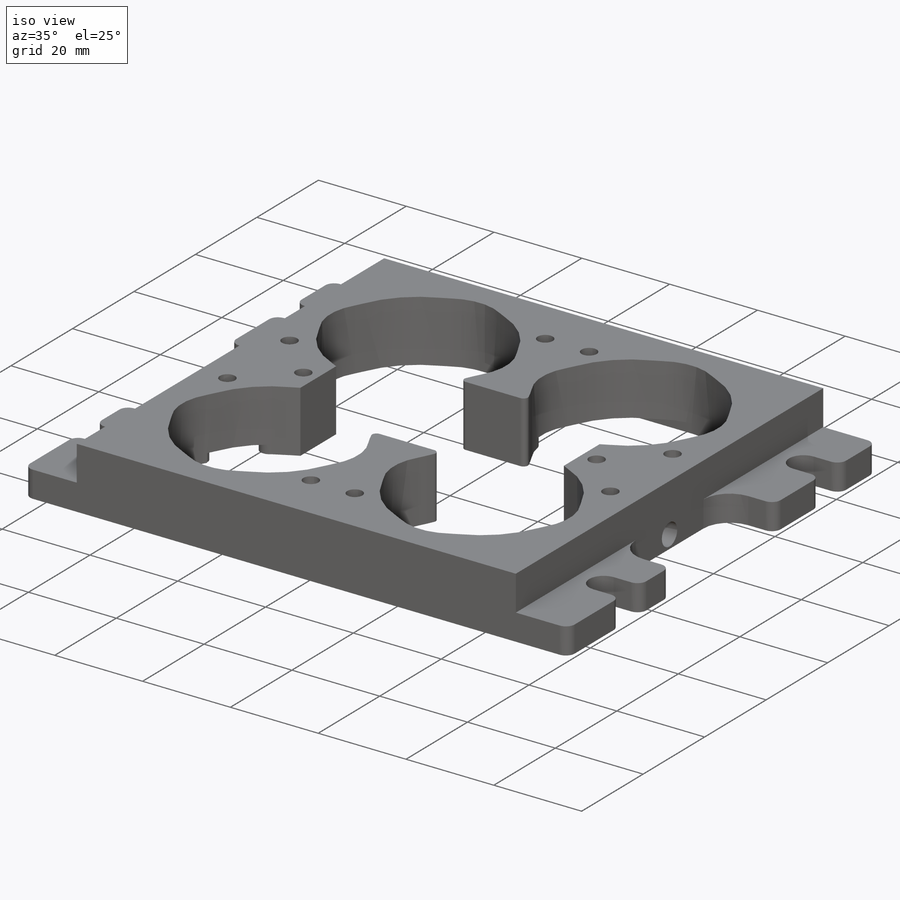
[diagram: iso view]
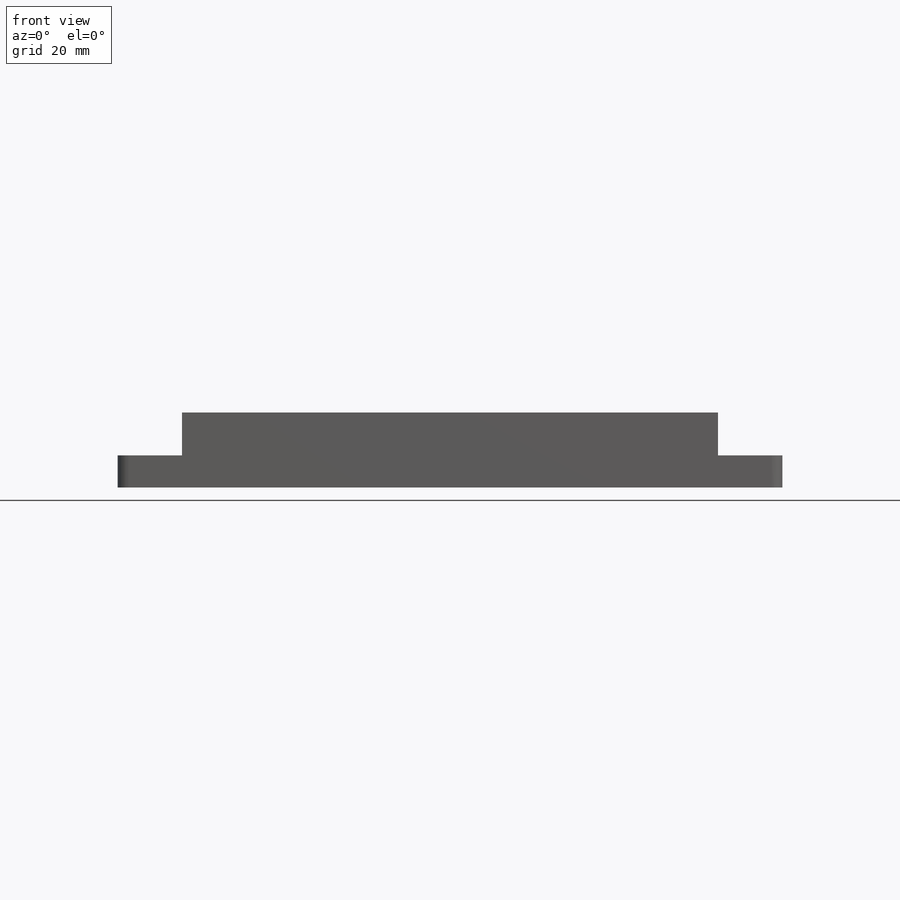
[diagram: front view]
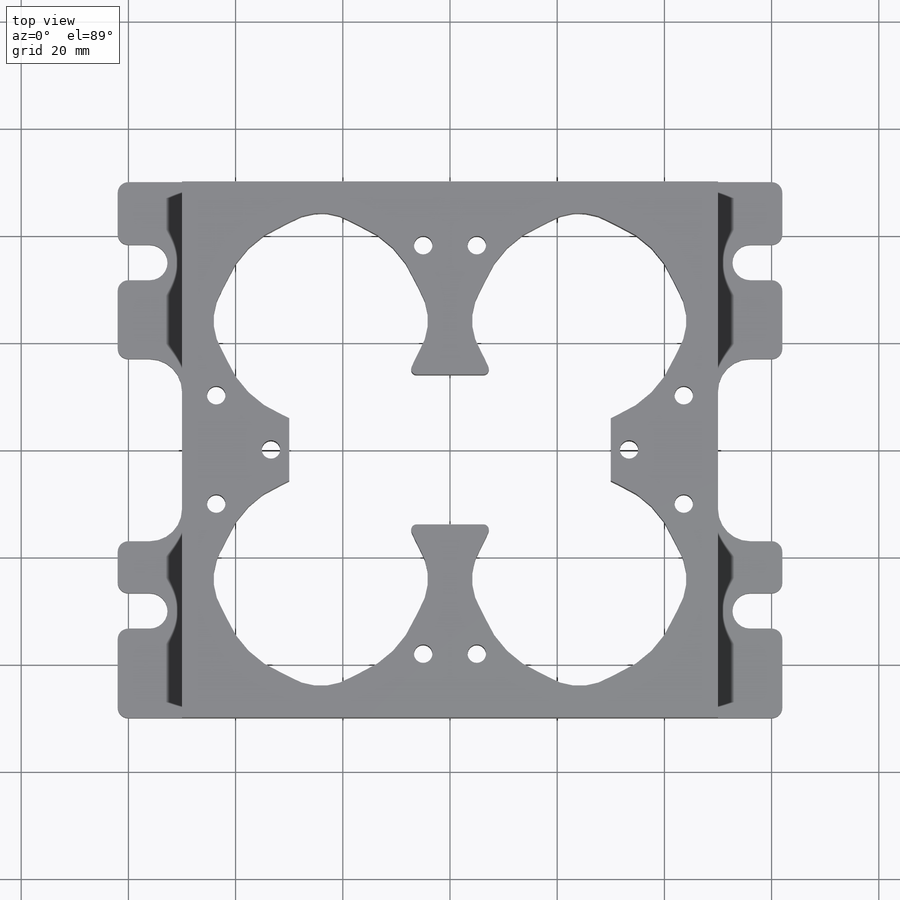
[diagram: top view]
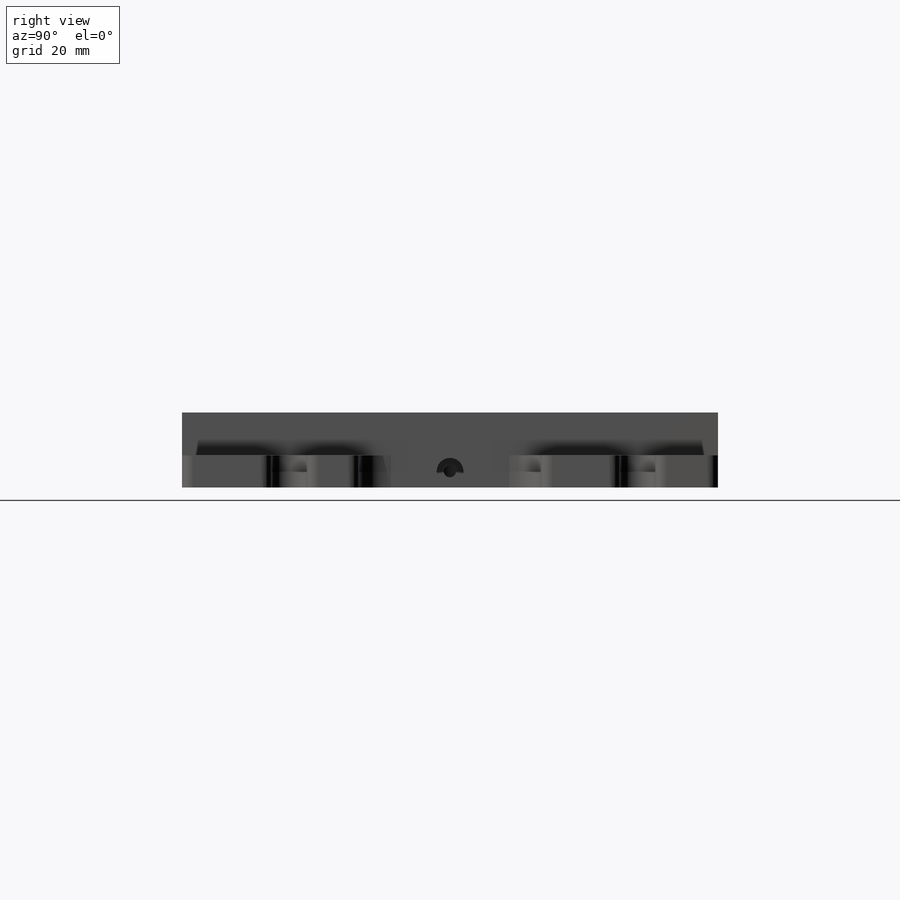
[diagram: right view]
SOLIDWORKS PART (.sldprt)
format: sldprt  version: not decoded by parser v0  size: 752,128 bytes
history: native  units: mm
features: sketch x14, thread x11, mirror x8, cut_extrude x6, fillet x4, hole x3, extrude x2, plane x2, material x1 (+16 scaffold rows collapsed)
feature tree (67):
  scaffold x16  (default folders/planes/origin — collapsed)
  material  "6061-T6 Al"
  sketch  "Sketch1"  dims[D1=100.0mm D2=100.0mm]
  extrude  "Extrude1"  Depth=14mm
  plane  "Plane1"
  sketch  "Sketch2"  dims[c1.D4=6.6mm c1.D5=6.6mm c1.D6=6.6mm c1.D8=2.0mm c1.D10=3.3mm c1.D11=3.3mm c1.D1=12.0mm c1.D2=34.0mm c1.D3=17.0mm c2.D6=15.0mm c2.D7=80.0mm c2.D9=33.0mm c2.D10=6.0mm c2.D11=6.0mm]
  extrude  "Extrude2"  Depth=6mm
  mirror  "Mirror7"
  fillet  "Fillet2"  Radius=6mm
  plane  "Plane2"
  sketch  "Sketch3"  dims[D1=28.0mm D2=60.0mm]
  cut_extrude  "Extrude3"  [1 undecoded]
  sketch  "Sketch4"  dims[c1.D1=38.1mm c1.D2=38.1mm c1.D3=38.1mm c1.D4=~13.421758mm c1.D5=~11.576394mm c1.D6=~13.211969mm c1.D7=~13.412116mm c1.D8=22.0mm c1.D9=22.0mm c1.D10=22.0mm c1.D11=22.0mm c2.D5=11.0mm c2.D2=24.11mm c2.D3=24.11mm c2.D4=9.0mm c3.D5=9.0mm c3.D6=9.0mm c3.D7=9.0mm]
  cut_extrude  "Extrude4"  [1 undecoded]
  mirror  "Mirror8"
  mirror  "Mirror9"
  sketch  "Sketch5"
  cut_extrude  "Extrude5"  Depth=2mm
  sketch  "Sketch6"  dims[c1.D1=12.0mm c1.D2=10.0mm c1.D3=10.0mm c2.D2=43.61mm c2.D3=10.11mm]
  cut_extrude  "Extrude6"  Depth=2mm
  mirror  "Mirror10"
  mirror  "Mirror11"
  fillet  "Fillet3"  Radius=2mm
  sketch  "Sketch7"  dims[D1=4.0mm]
  cut_extrude  "Extrude7"  [1 undecoded]
  mirror  "Mirror12"
  mirror  "Mirror13"
  fillet  "Fillet4"  Radius=2mm
  fillet  "Fillet5"  Radius=1mm
  hole  "#8-32 Tapped Hole2"  Diameter=3.4544mm Depth=20.71mm
  sketch  "3DSketch1"  dims[D1=33.4mm D2=33.4mm D3=~69.192702mm]
  sketch  "Sketch8"  dims[hole-wizard template sketch: 47 standard entries collapsed; hole parameters kept: c15.Tap Drill Depth=20.71mm c15.D3=~14.816244mm c15.Drill Angle=118.0deg]
  thread  "Hole Thread1"  Diameter=14mm  [1 undecoded]
  thread  "Hole Thread2"  Diameter=14mm  [1 undecoded]
  sketch  "Sketch10"  dims[D1=5.0mm]
  cut_extrude  "Extrude8"  Depth=8mm
  hole  "#4-40 Tapped Hole2"  Diameter=2.2606mm Depth=7.6mm
  sketch  "3DSketch3"
  sketch  "Sketch11"  dims[hole-wizard template sketch: 50 standard entries collapsed; hole parameters above]
  thread  "Hole Thread5"  Diameter=7.293998mm  [1 undecoded]
  mirror  "Mirror14"
  hole  "#8-32 Tapped Hole1"  Diameter=3.4544mm Depth=12.000025mm
  sketch  "3DSketch4"  dims[c1.D1=10.0mm c1.D2=10.0mm c1.D3=~37.602795mm c1.D6=38.11mm c1.D4=~37.79314mm c2.D3=38.11mm c2.D5=~5.633471mm c2.D9=5.0mm c2.D6=~40.102829mm c3.D9=38.11mm c3.D7=~37.642417mm c4.D9=38.11mm c4.D8=~5.660805mm c5.D9=5.0mm c5.D3=~38.057484mm c6.D9=38.11mm c6.D4=38.11mm c6.D6=38.11mm c6.D7=38.11mm c6.D8=5.0mm c6.D5=5.0mm c6.D3=38.11mm]
  sketch  "Sketch12"  dims[hole-wizard template sketch: 60 standard entries collapsed; hole parameters kept: c18.Thru Tap Drill Depth=~12.000025mm]
  thread  "Hole Thread6"  Diameter=4.1656mm  [1 undecoded]
  thread  "Hole Thread7"  Diameter=4.1656mm  [1 undecoded]
  thread  "Hole Thread8"  Diameter=4.1656mm  [1 undecoded]
  thread  "Hole Thread9"  Diameter=4.1656mm  [1 undecoded]
  thread  "Hole Thread10"  Diameter=4.1656mm  [1 undecoded]
  thread  "Hole Thread11"  Diameter=4.1656mm  [1 undecoded]
  thread  "Hole Thread12"  Diameter=4.1656mm  [1 undecoded]
  thread  "Hole Thread13"  Diameter=4.1656mm  [1 undecoded]
decode coverage: 35 of 48 modeling features carry decoded parameters
note: ~ marks probable driven/reference dimensions
note: 14 parameter values undecoded
summary: no parameter record found for 3 features
note: suppression state not decoded; provenance and decode notes live in map.json
